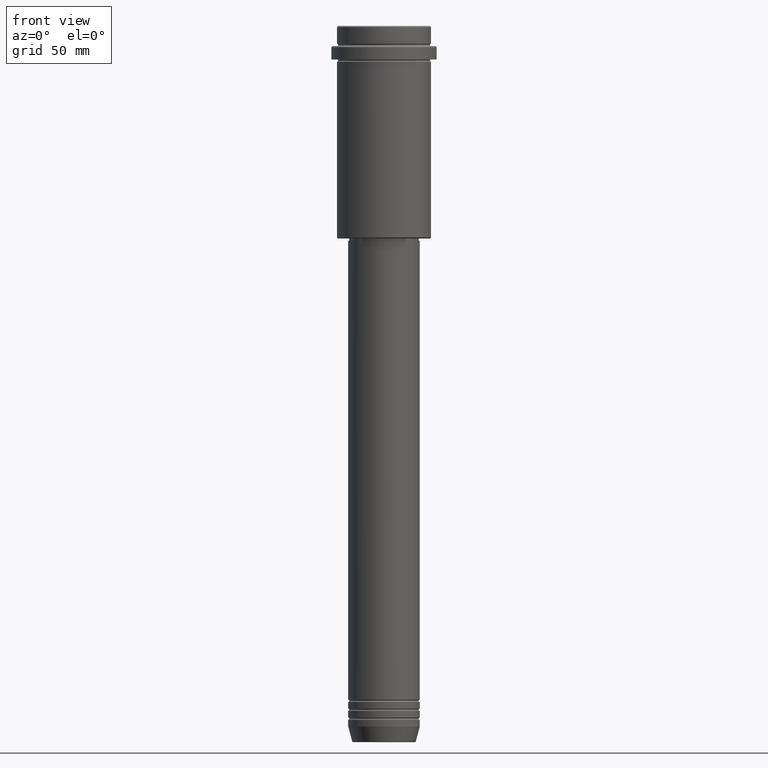
[diagram: clean part render]
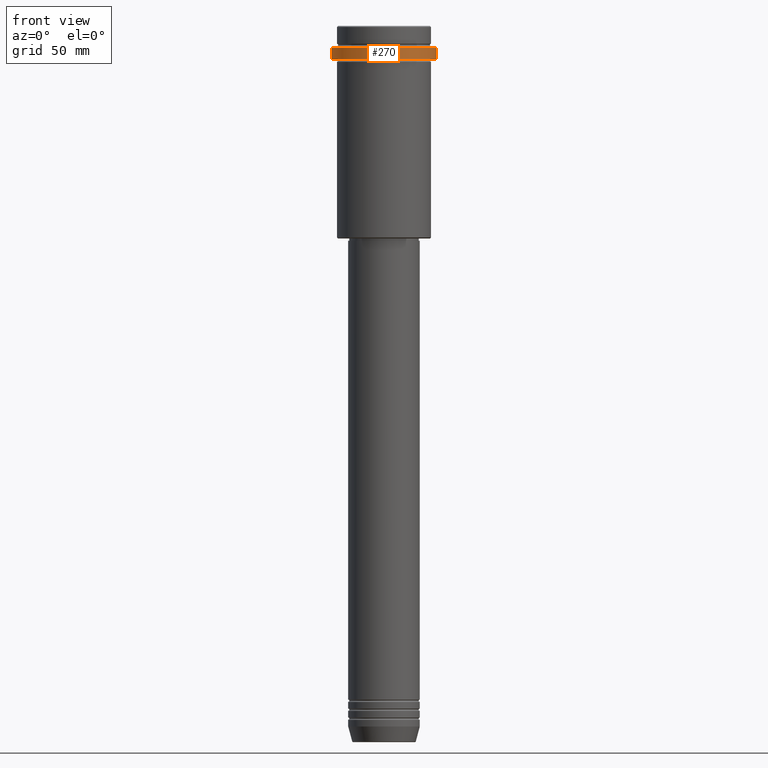
[diagram: same view with one face highlighted and labeled with its STEP entity id]
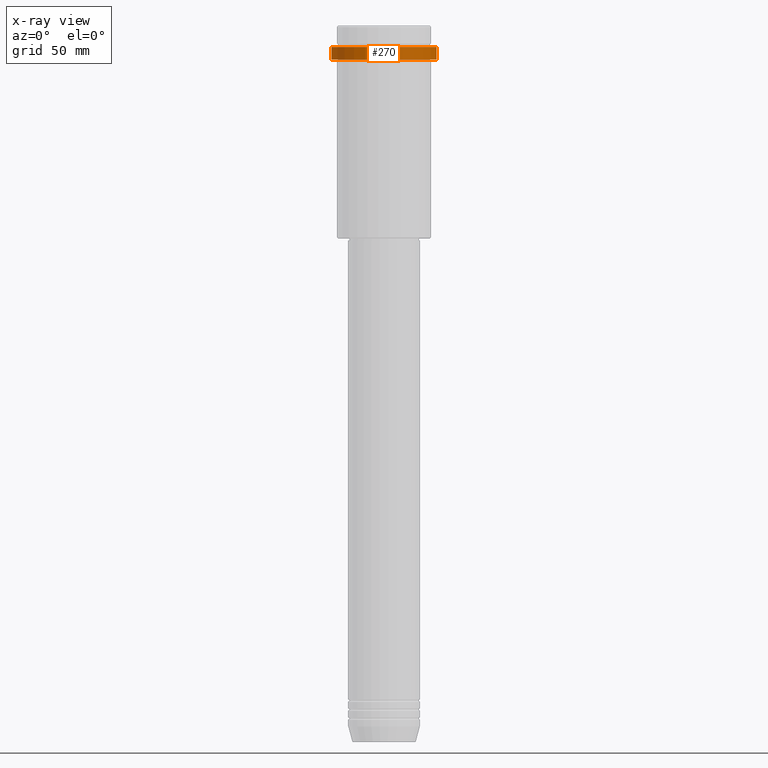
[diagram: x-ray of the same camera — body ghosted, the highlighted face saturated]
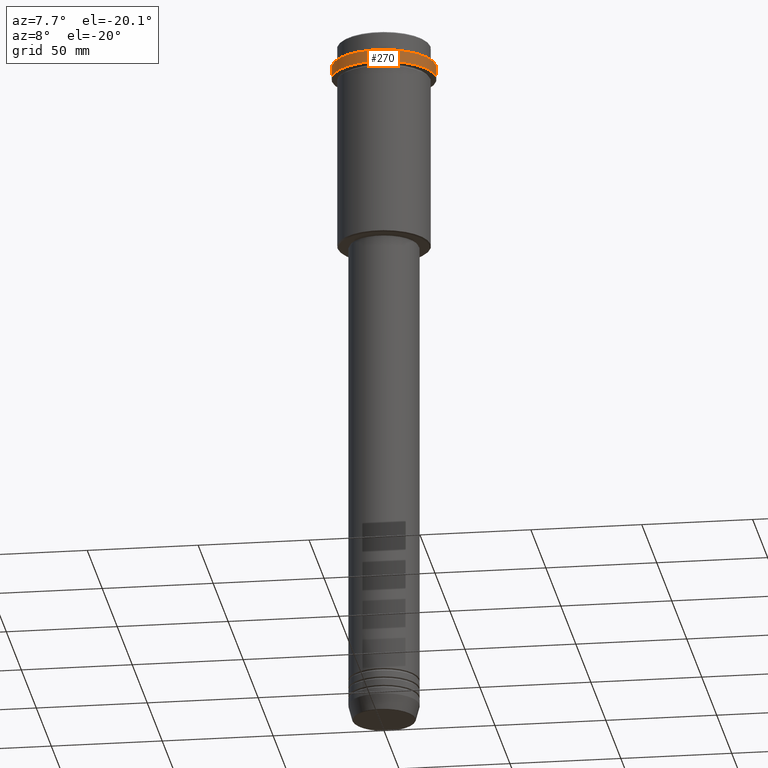
[diagram: same view with one face highlighted and labeled with its STEP entity id]
A machine part, front view. The second image highlights one B-rep face of the part: STEP entity #270.
The next image is the same camera in x-ray: the body ghosted, the highlighted face saturated — about 0% of this face is hidden behind the body in this view.
A second angle (auxiliary view) of the same face is appended — the face is thin or edge-on in the first view.
In plain terms, the highlighted cylindrical surface (partial cylindrical patch) has radius 23.5 mm, axis along (-0, -0, 1).
Its self-contained STEP definition (entity closure, byte-faithful):
#85 = VERTEX_POINT ( 'NONE', #508 ) ;
#135 = DIRECTION ( 'NONE',  ( 1.000000000000000000, 0.000000000000000000, 0.000000000000000000 ) ) ;
#139 = ORIENTED_EDGE ( 'NONE', *, *, #198, .F. ) ;
#198 = EDGE_CURVE ( 'NONE', #995, #1032, #1044, .T. ) ;
#215 = AXIS2_PLACEMENT_3D ( 'NONE', #1254, #503, #1277 ) ;
#238 = EDGE_CURVE ( 'NONE', #995, #1122, #612, .T. ) ;
#249 = LINE ( 'NONE', #337, #472 ) ;
#270 = ADVANCED_FACE ( 'NONE', ( #1063 ), #832, .T. ) ;
#276 = EDGE_CURVE ( 'NONE', #85, #1032, #707, .T. ) ;
#337 = CARTESIAN_POINT ( 'NONE',  ( 23.50000000000000000, 0.000000000000000000, 0.000000000000000000 ) ) ;
#384 = DIRECTION ( 'NONE',  ( 0.000000000000000000, 0.000000000000000000, -1.000000000000000000 ) ) ;
#448 = CARTESIAN_POINT ( 'NONE',  ( -23.50000000000000000, 2.877919977996280320E-15, -9.499999999999971578 ) ) ;
#472 = VECTOR ( 'NONE', #1084, 1000.000000000000000 ) ;
#503 = DIRECTION ( 'NONE',  ( -0.000000000000000000, -0.000000000000000000, 1.000000000000000000 ) ) ;
#508 = CARTESIAN_POINT ( 'NONE',  ( 23.50000000000000000, 0.000000000000000000, -9.499999999999971578 ) ) ;
#536 = EDGE_CURVE ( 'NONE', #1122, #85, #249, .T. ) ;
#577 = DIRECTION ( 'NONE',  ( -0.000000000000000000, -0.000000000000000000, 1.000000000000000000 ) ) ;
#612 = CIRCLE ( 'NONE', #1333, 23.50000000000000355 ) ;
#707 = CIRCLE ( 'NONE', #789, 23.50000000000000000 ) ;
#723 = VECTOR ( 'NONE', #1176, 1000.000000000000000 ) ;
#789 = AXIS2_PLACEMENT_3D ( 'NONE', #1065, #384, #1263 ) ;
#832 = CYLINDRICAL_SURFACE ( 'NONE', #215, 23.50000000000000000 ) ;
#944 = ORIENTED_EDGE ( 'NONE', *, *, #238, .T. ) ;
#965 = CARTESIAN_POINT ( 'NONE',  ( -23.50000000000000000, 2.877919977996280320E-15, 0.000000000000000000 ) ) ;
#995 = VERTEX_POINT ( 'NONE', #997 ) ;
#997 = CARTESIAN_POINT ( 'NONE',  ( -23.50000000000000711, 2.877919977996281109E-15, -15.00000000000000000 ) ) ;
#1025 = ORIENTED_EDGE ( 'NONE', *, *, #536, .T. ) ;
#1032 = VERTEX_POINT ( 'NONE', #448 ) ;
#1044 = LINE ( 'NONE', #965, #723 ) ;
#1063 = FACE_OUTER_BOUND ( 'NONE', #1183, .T. ) ;
#1065 = CARTESIAN_POINT ( 'NONE',  ( 0.000000000000000000, 0.000000000000000000, -9.499999999999971578 ) ) ;
#1084 = DIRECTION ( 'NONE',  ( -0.000000000000000000, -0.000000000000000000, 1.000000000000000000 ) ) ;
#1110 = ORIENTED_EDGE ( 'NONE', *, *, #276, .T. ) ;
#1122 = VERTEX_POINT ( 'NONE', #1248 ) ;
#1176 = DIRECTION ( 'NONE',  ( -0.000000000000000000, -0.000000000000000000, 1.000000000000000000 ) ) ;
#1183 = EDGE_LOOP ( 'NONE', ( #139, #944, #1025, #1110 ) ) ;
#1244 = CARTESIAN_POINT ( 'NONE',  ( 0.000000000000000000, 0.000000000000000000, -15.00000000000000000 ) ) ;
#1248 = CARTESIAN_POINT ( 'NONE',  ( 23.50000000000000355, 0.000000000000000000, -15.00000000000000000 ) ) ;
#1254 = CARTESIAN_POINT ( 'NONE',  ( 0.000000000000000000, 0.000000000000000000, 0.000000000000000000 ) ) ;
#1263 = DIRECTION ( 'NONE',  ( 1.000000000000000000, 0.000000000000000000, 0.000000000000000000 ) ) ;
#1277 = DIRECTION ( 'NONE',  ( 1.000000000000000000, 0.000000000000000000, 0.000000000000000000 ) ) ;
#1333 = AXIS2_PLACEMENT_3D ( 'NONE', #1244, #577, #135 ) ;